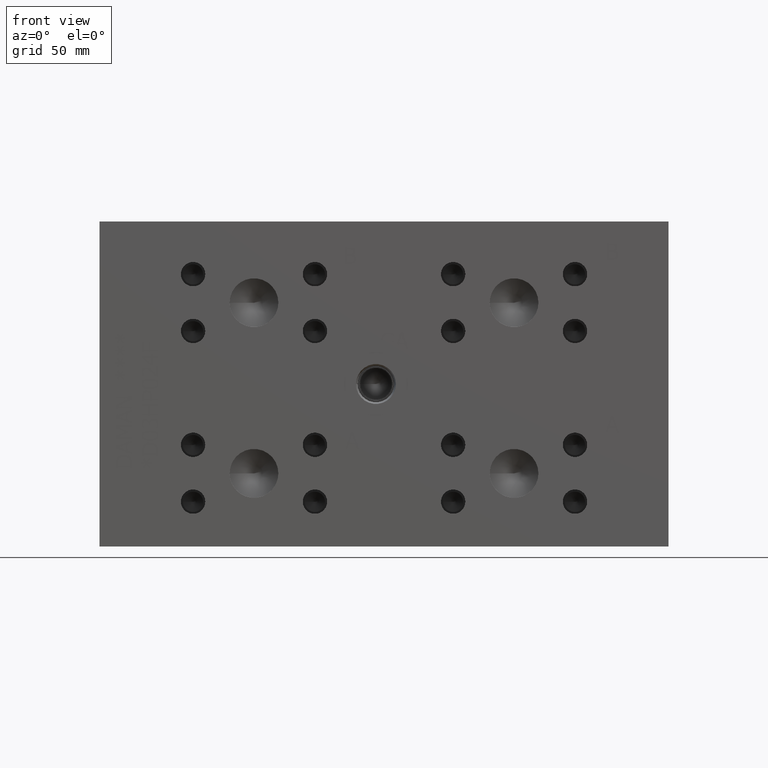
[diagram: clean part render]
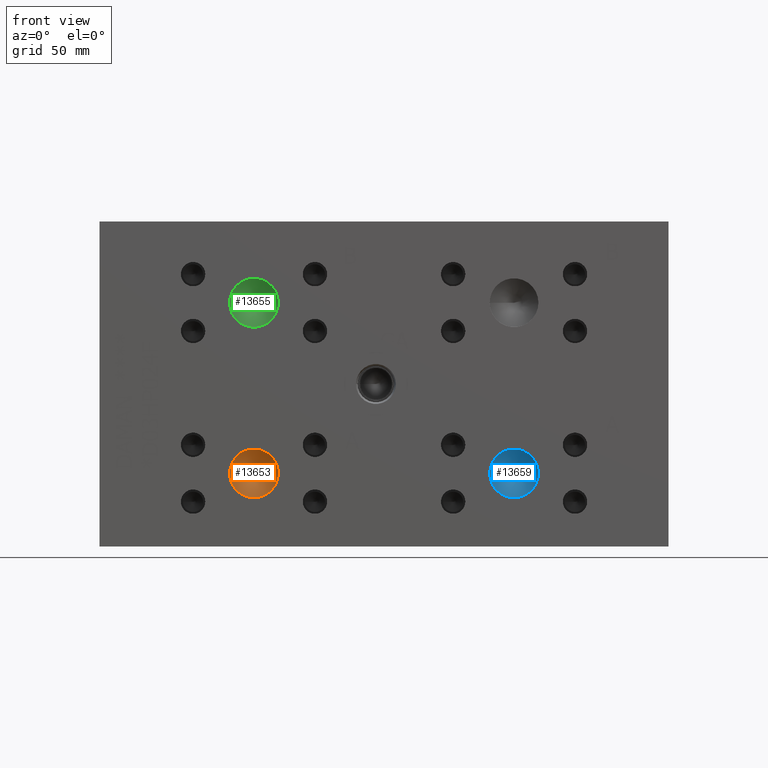
[diagram: same view with three faces highlighted in distinct colors, each labeled with its STEP entity id]
A machine part, front view with three faces highlighted in distinct colors.
Their STEP definitions:

[orange] entity #13653 — the highlighted conical surface has half-angle 60 deg.
#169=CONICAL_SURFACE('',#14534,4.7625,1.0471975511966);
#486=CIRCLE('',#14535,9.525);
#487=CIRCLE('',#14536,9.525);
#1795=FACE_OUTER_BOUND('',#2632,.T.);
#2632=EDGE_LOOP('',(#11800,#11801,#11802,#11803));
#3886=LINE('',#23219,#5102);
#5102=VECTOR('',#17474,4.7625);
#6366=VERTEX_POINT('',#23215);
#6367=VERTEX_POINT('',#23216);
#6368=VERTEX_POINT('',#23218);
#8221=EDGE_CURVE('',#6366,#6367,#486,.T.);
#8222=EDGE_CURVE('',#6367,#6368,#3886,.T.);
#8223=EDGE_CURVE('',#6367,#6366,#487,.T.);
#11800=ORIENTED_EDGE('',*,*,#8221,.T.);
#11801=ORIENTED_EDGE('',*,*,#8222,.T.);
#11802=ORIENTED_EDGE('',*,*,#8222,.F.);
#11803=ORIENTED_EDGE('',*,*,#8223,.T.);
#13653=ADVANCED_FACE('',(#1795),#169,.F.);
#14534=AXIS2_PLACEMENT_3D('',#23214,#17470,#17471);
#14535=AXIS2_PLACEMENT_3D('',#23217,#17472,#17473);
#14536=AXIS2_PLACEMENT_3D('',#23220,#17475,#17476);
#17470=DIRECTION('center_axis',(0.,-1.,0.));
#17471=DIRECTION('ref_axis',(1.,0.,0.));
#17472=DIRECTION('center_axis',(0.,-1.,0.));
#17473=DIRECTION('ref_axis',(1.,0.,0.));
#17474=DIRECTION('',(0.866025403784439,0.5,1.06057523872491E-16));
#17475=DIRECTION('center_axis',(0.,-1.,0.));
#17476=DIRECTION('ref_axis',(1.,0.,0.));
#23214=CARTESIAN_POINT('Origin',(60.325,8.24889065701559,28.575));
#23215=CARTESIAN_POINT('',(69.85,5.49926,28.575));
#23216=CARTESIAN_POINT('',(50.8,5.49926,28.575));
#23217=CARTESIAN_POINT('Origin',(60.325,5.49926,28.575));
#23218=CARTESIAN_POINT('',(60.325,10.9985213140312,28.575));
#23219=CARTESIAN_POINT('',(55.5625,8.24889065701559,28.575));
#23220=CARTESIAN_POINT('Origin',(60.325,5.49926,28.575));

[blue] entity #13659 — the highlighted conical surface has half-angle 60 deg.
#172=CONICAL_SURFACE('',#14546,4.7625,1.0471975511966);
#492=CIRCLE('',#14547,9.525);
#493=CIRCLE('',#14548,9.525);
#1801=FACE_OUTER_BOUND('',#2638,.T.);
#2638=EDGE_LOOP('',(#11830,#11831,#11832,#11833));
#3892=LINE('',#23246,#5108);
#5108=VECTOR('',#17504,4.7625);
#6375=VERTEX_POINT('',#23242);
#6376=VERTEX_POINT('',#23243);
#6377=VERTEX_POINT('',#23245);
#8233=EDGE_CURVE('',#6375,#6376,#492,.T.);
#8234=EDGE_CURVE('',#6376,#6377,#3892,.T.);
#8235=EDGE_CURVE('',#6376,#6375,#493,.T.);
#11830=ORIENTED_EDGE('',*,*,#8233,.T.);
#11831=ORIENTED_EDGE('',*,*,#8234,.T.);
#11832=ORIENTED_EDGE('',*,*,#8234,.F.);
#11833=ORIENTED_EDGE('',*,*,#8235,.T.);
#13659=ADVANCED_FACE('',(#1801),#172,.F.);
#14546=AXIS2_PLACEMENT_3D('',#23241,#17500,#17501);
#14547=AXIS2_PLACEMENT_3D('',#23244,#17502,#17503);
#14548=AXIS2_PLACEMENT_3D('',#23247,#17505,#17506);
#17500=DIRECTION('center_axis',(0.,-1.,0.));
#17501=DIRECTION('ref_axis',(1.,0.,0.));
#17502=DIRECTION('center_axis',(0.,-1.,0.));
#17503=DIRECTION('ref_axis',(1.,0.,0.));
#17504=DIRECTION('',(0.866025403784439,0.5,1.06057523872491E-16));
#17505=DIRECTION('center_axis',(0.,-1.,0.));
#17506=DIRECTION('ref_axis',(1.,0.,0.));
#23241=CARTESIAN_POINT('Origin',(161.925,8.24889065701559,28.575));
#23242=CARTESIAN_POINT('',(171.45,5.49926,28.575));
#23243=CARTESIAN_POINT('',(152.4,5.49926,28.575));
#23244=CARTESIAN_POINT('Origin',(161.925,5.49926,28.575));
#23245=CARTESIAN_POINT('',(161.925,10.9985213140312,28.575));
#23246=CARTESIAN_POINT('',(157.1625,8.24889065701559,28.575));
#23247=CARTESIAN_POINT('Origin',(161.925,5.49926,28.575));

[green] entity #13655 — the highlighted conical surface has half-angle 60 deg.
#170=CONICAL_SURFACE('',#14538,4.7625,1.0471975511966);
#488=CIRCLE('',#14539,9.525);
#489=CIRCLE('',#14540,9.525);
#1797=FACE_OUTER_BOUND('',#2634,.T.);
#2634=EDGE_LOOP('',(#11810,#11811,#11812,#11813));
#3888=LINE('',#23228,#5104);
#5104=VECTOR('',#17484,4.7625);
#6369=VERTEX_POINT('',#23224);
#6370=VERTEX_POINT('',#23225);
#6371=VERTEX_POINT('',#23227);
#8225=EDGE_CURVE('',#6369,#6370,#488,.T.);
#8226=EDGE_CURVE('',#6370,#6371,#3888,.T.);
#8227=EDGE_CURVE('',#6370,#6369,#489,.T.);
#11810=ORIENTED_EDGE('',*,*,#8225,.T.);
#11811=ORIENTED_EDGE('',*,*,#8226,.T.);
#11812=ORIENTED_EDGE('',*,*,#8226,.F.);
#11813=ORIENTED_EDGE('',*,*,#8227,.T.);
#13655=ADVANCED_FACE('',(#1797),#170,.F.);
#14538=AXIS2_PLACEMENT_3D('',#23223,#17480,#17481);
#14539=AXIS2_PLACEMENT_3D('',#23226,#17482,#17483);
#14540=AXIS2_PLACEMENT_3D('',#23229,#17485,#17486);
#17480=DIRECTION('center_axis',(0.,-1.,0.));
#17481=DIRECTION('ref_axis',(1.,0.,0.));
#17482=DIRECTION('center_axis',(0.,-1.,0.));
#17483=DIRECTION('ref_axis',(1.,0.,0.));
#17484=DIRECTION('',(0.866025403784439,0.5,1.06057523872491E-16));
#17485=DIRECTION('center_axis',(0.,-1.,0.));
#17486=DIRECTION('ref_axis',(1.,0.,0.));
#23223=CARTESIAN_POINT('Origin',(60.325,8.24889065701559,95.25));
#23224=CARTESIAN_POINT('',(69.85,5.49926,95.25));
#23225=CARTESIAN_POINT('',(50.8,5.49926,95.25));
#23226=CARTESIAN_POINT('Origin',(60.325,5.49926,95.25));
#23227=CARTESIAN_POINT('',(60.325,10.9985213140312,95.25));
#23228=CARTESIAN_POINT('',(55.5625,8.24889065701559,95.25));
#23229=CARTESIAN_POINT('Origin',(60.325,5.49926,95.25));